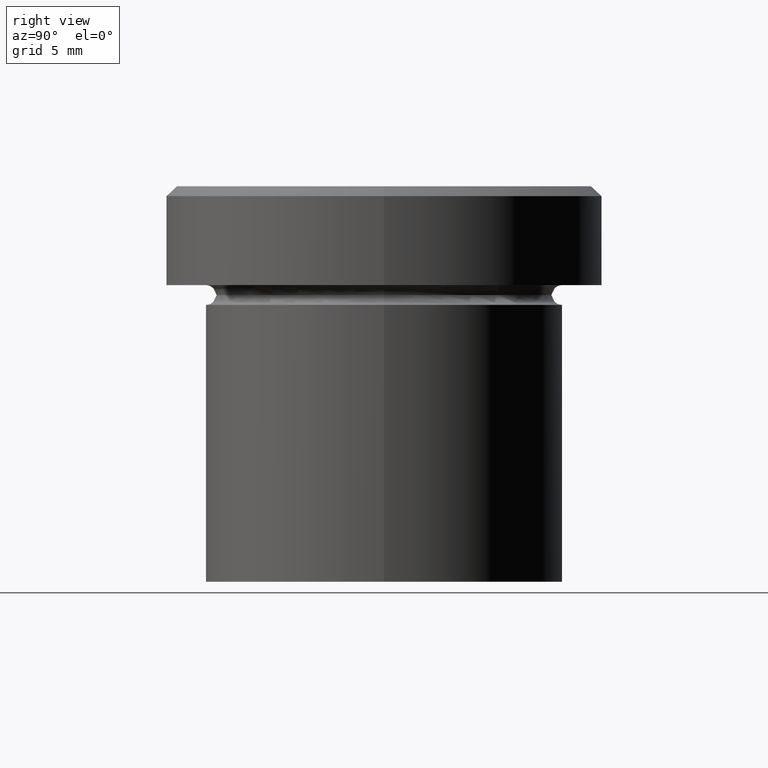
[diagram: clean part render]
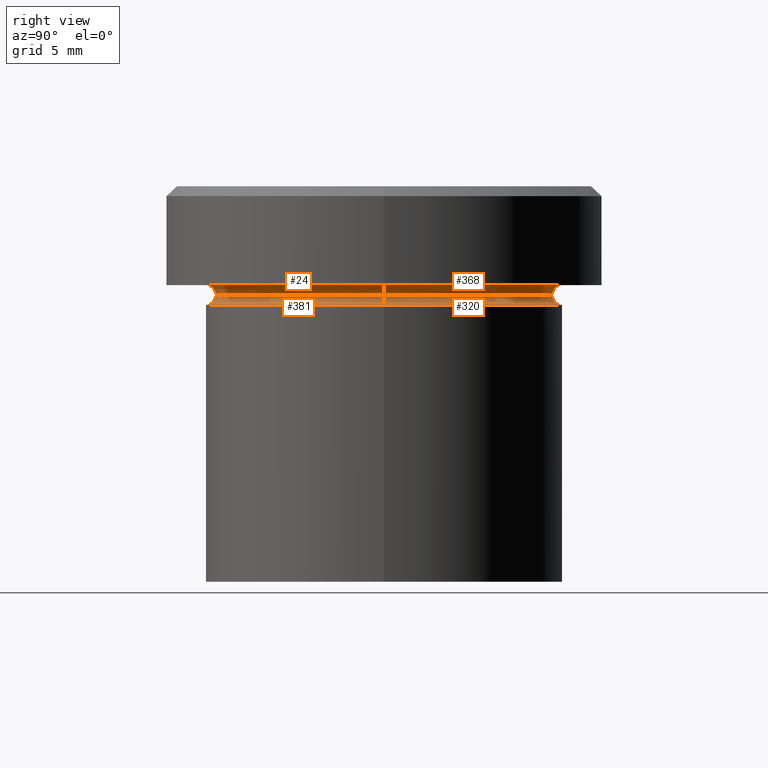
[diagram: same view with one multi-face feature highlighted, each face labeled with its STEP entity id]
A machine part, right view. The highlighted faces form ONE feature: a constant-radius fillet chain: 4 tangent blend faces with common blend radius 0.5 mm. The faces share edges in the B-rep.
Their STEP definitions:
[1] entity #24 (Torus):
#12 = DIRECTION ( 'NONE',  ( -1.000000000000000000, 0.000000000000000000, 0.000000000000000000 ) ) ;
#24 = ADVANCED_FACE ( 'NONE', ( #163 ), #360, .F. ) ;
#26 = CARTESIAN_POINT ( 'NONE',  ( 9.000000000000000000, 1.102182119232617714E-15, -5.500000000000000000 ) ) ;
#29 = DIRECTION ( 'NONE',  ( -0.000000000000000000, -0.000000000000000000, 1.000000000000000000 ) ) ;
#33 = CARTESIAN_POINT ( 'NONE',  ( 0.000000000000000000, 0.000000000000000000, -5.500000000000000000 ) ) ;
#45 = CARTESIAN_POINT ( 'NONE',  ( 0.000000000000000000, 0.000000000000000000, -5.000000000000000000 ) ) ;
#56 = ORIENTED_EDGE ( 'NONE', *, *, #72, .F. ) ;
#60 = AXIS2_PLACEMENT_3D ( 'NONE', #33, #29, #156 ) ;
#66 = AXIS2_PLACEMENT_3D ( 'NONE', #369, #293, #144 ) ;
#69 = CARTESIAN_POINT ( 'NONE',  ( 0.000000000000000000, 0.000000000000000000, -5.500000000000000000 ) ) ;
#72 = EDGE_CURVE ( 'NONE', #274, #240, #394, .T. ) ;
#77 = CARTESIAN_POINT ( 'NONE',  ( -8.499999999999998224, 1.071565949253933927E-15, -5.500000000000000000 ) ) ;
#97 = EDGE_CURVE ( 'NONE', #311, #240, #401, .T. ) ;
#98 = DIRECTION ( 'NONE',  ( -0.000000000000000000, -0.000000000000000000, 1.000000000000000000 ) ) ;
#129 = ORIENTED_EDGE ( 'NONE', *, *, #97, .T. ) ;
#136 = EDGE_CURVE ( 'NONE', #295, #311, #264, .T. ) ;
#144 = DIRECTION ( 'NONE',  ( 0.000000000000000000, 0.000000000000000000, -1.000000000000000000 ) ) ;
#147 = DIRECTION ( 'NONE',  ( -1.000000000000000000, -1.224646799147353454E-16, 0.000000000000000000 ) ) ;
#156 = DIRECTION ( 'NONE',  ( 1.000000000000000000, 0.000000000000000000, 0.000000000000000000 ) ) ;
#163 = FACE_OUTER_BOUND ( 'NONE', #409, .T. ) ;
#165 = DIRECTION ( 'NONE',  ( 0.000000000000000000, 0.000000000000000000, -1.000000000000000000 ) ) ;
#169 = CARTESIAN_POINT ( 'NONE',  ( 8.499999999999998224, 0.000000000000000000, -5.500000000000000000 ) ) ;
#174 = DIRECTION ( 'NONE',  ( -1.224646799147353207E-16, 1.000000000000000000, 0.000000000000000000 ) ) ;
#187 = AXIS2_PLACEMENT_3D ( 'NONE', #45, #98, #12 ) ;
#215 = CARTESIAN_POINT ( 'NONE',  ( 9.000000000000000000, 1.102182119232617714E-15, -4.999999999999999112 ) ) ;
#224 = ORIENTED_EDGE ( 'NONE', *, *, #333, .F. ) ;
#235 = CIRCLE ( 'NONE', #66, 0.5000000000000004441 ) ;
#240 = VERTEX_POINT ( 'NONE', #215 ) ;
#251 = CARTESIAN_POINT ( 'NONE',  ( -9.000000000000000000, 0.000000000000000000, -4.999999999999999112 ) ) ;
#264 = CIRCLE ( 'NONE', #60, 8.499999999999998224 ) ;
#274 = VERTEX_POINT ( 'NONE', #251 ) ;
#293 = DIRECTION ( 'NONE',  ( -0.000000000000000000, -1.000000000000000000, -0.000000000000000000 ) ) ;
#295 = VERTEX_POINT ( 'NONE', #77 ) ;
#300 = AXIS2_PLACEMENT_3D ( 'NONE', #26, #174, #147 ) ;
#308 = ORIENTED_EDGE ( 'NONE', *, *, #136, .T. ) ;
#311 = VERTEX_POINT ( 'NONE', #169 ) ;
#333 = EDGE_CURVE ( 'NONE', #295, #274, #235, .T. ) ;
#347 = AXIS2_PLACEMENT_3D ( 'NONE', #69, #165, #391 ) ;
#360 = TOROIDAL_SURFACE ( 'NONE', #347, 9.000000000000000000, 0.5000000000000000000 ) ;
#369 = CARTESIAN_POINT ( 'NONE',  ( -9.000000000000000000, 0.000000000000000000, -5.500000000000000000 ) ) ;
#391 = DIRECTION ( 'NONE',  ( -1.000000000000000000, 0.000000000000000000, 0.000000000000000000 ) ) ;
#394 = CIRCLE ( 'NONE', #187, 9.000000000000000000 ) ;
#401 = CIRCLE ( 'NONE', #300, 0.5000000000000004441 ) ;
#409 = EDGE_LOOP ( 'NONE', ( #308, #129, #56, #224 ) ) ;
[2] entity #368 (Torus):
#6 = ORIENTED_EDGE ( 'NONE', *, *, #333, .T. ) ;
#14 = DIRECTION ( 'NONE',  ( -1.000000000000000000, 0.000000000000000000, 0.000000000000000000 ) ) ;
#18 = EDGE_CURVE ( 'NONE', #240, #274, #226, .T. ) ;
#26 = CARTESIAN_POINT ( 'NONE',  ( 9.000000000000000000, 1.102182119232617714E-15, -5.500000000000000000 ) ) ;
#31 = ORIENTED_EDGE ( 'NONE', *, *, #91, .T. ) ;
#47 = CARTESIAN_POINT ( 'NONE',  ( 0.000000000000000000, 0.000000000000000000, -5.000000000000000000 ) ) ;
#51 = ORIENTED_EDGE ( 'NONE', *, *, #97, .F. ) ;
#66 = AXIS2_PLACEMENT_3D ( 'NONE', #369, #293, #144 ) ;
#77 = CARTESIAN_POINT ( 'NONE',  ( -8.499999999999998224, 1.071565949253933927E-15, -5.500000000000000000 ) ) ;
#81 = CARTESIAN_POINT ( 'NONE',  ( 0.000000000000000000, 0.000000000000000000, -5.500000000000000000 ) ) ;
#91 = EDGE_CURVE ( 'NONE', #311, #295, #291, .T. ) ;
#95 = AXIS2_PLACEMENT_3D ( 'NONE', #81, #367, #330 ) ;
#97 = EDGE_CURVE ( 'NONE', #311, #240, #401, .T. ) ;
#106 = ORIENTED_EDGE ( 'NONE', *, *, #18, .F. ) ;
#133 = AXIS2_PLACEMENT_3D ( 'NONE', #47, #323, #14 ) ;
#137 = FACE_OUTER_BOUND ( 'NONE', #230, .T. ) ;
#144 = DIRECTION ( 'NONE',  ( 0.000000000000000000, 0.000000000000000000, -1.000000000000000000 ) ) ;
#147 = DIRECTION ( 'NONE',  ( -1.000000000000000000, -1.224646799147353454E-16, 0.000000000000000000 ) ) ;
#169 = CARTESIAN_POINT ( 'NONE',  ( 8.499999999999998224, 0.000000000000000000, -5.500000000000000000 ) ) ;
#174 = DIRECTION ( 'NONE',  ( -1.224646799147353207E-16, 1.000000000000000000, 0.000000000000000000 ) ) ;
#175 = AXIS2_PLACEMENT_3D ( 'NONE', #331, #370, #198 ) ;
#198 = DIRECTION ( 'NONE',  ( 1.000000000000000000, 0.000000000000000000, 0.000000000000000000 ) ) ;
#215 = CARTESIAN_POINT ( 'NONE',  ( 9.000000000000000000, 1.102182119232617714E-15, -4.999999999999999112 ) ) ;
#226 = CIRCLE ( 'NONE', #133, 9.000000000000000000 ) ;
#230 = EDGE_LOOP ( 'NONE', ( #51, #31, #6, #106 ) ) ;
#235 = CIRCLE ( 'NONE', #66, 0.5000000000000004441 ) ;
#240 = VERTEX_POINT ( 'NONE', #215 ) ;
#251 = CARTESIAN_POINT ( 'NONE',  ( -9.000000000000000000, 0.000000000000000000, -4.999999999999999112 ) ) ;
#273 = TOROIDAL_SURFACE ( 'NONE', #95, 9.000000000000000000, 0.5000000000000000000 ) ;
#274 = VERTEX_POINT ( 'NONE', #251 ) ;
#291 = CIRCLE ( 'NONE', #175, 8.499999999999998224 ) ;
#293 = DIRECTION ( 'NONE',  ( -0.000000000000000000, -1.000000000000000000, -0.000000000000000000 ) ) ;
#295 = VERTEX_POINT ( 'NONE', #77 ) ;
#300 = AXIS2_PLACEMENT_3D ( 'NONE', #26, #174, #147 ) ;
#311 = VERTEX_POINT ( 'NONE', #169 ) ;
#323 = DIRECTION ( 'NONE',  ( -0.000000000000000000, -0.000000000000000000, 1.000000000000000000 ) ) ;
#330 = DIRECTION ( 'NONE',  ( -1.000000000000000000, 0.000000000000000000, 0.000000000000000000 ) ) ;
#331 = CARTESIAN_POINT ( 'NONE',  ( 0.000000000000000000, 0.000000000000000000, -5.500000000000000000 ) ) ;
#333 = EDGE_CURVE ( 'NONE', #295, #274, #235, .T. ) ;
#367 = DIRECTION ( 'NONE',  ( 0.000000000000000000, 0.000000000000000000, -1.000000000000000000 ) ) ;
#368 = ADVANCED_FACE ( 'NONE', ( #137 ), #273, .F. ) ;
#369 = CARTESIAN_POINT ( 'NONE',  ( -9.000000000000000000, 0.000000000000000000, -5.500000000000000000 ) ) ;
#370 = DIRECTION ( 'NONE',  ( -0.000000000000000000, -0.000000000000000000, 1.000000000000000000 ) ) ;
#401 = CIRCLE ( 'NONE', #300, 0.5000000000000004441 ) ;
[3] entity #320 (Torus):
#1 = ORIENTED_EDGE ( 'NONE', *, *, #91, .F. ) ;
#16 = AXIS2_PLACEMENT_3D ( 'NONE', #228, #52, #140 ) ;
#34 = ORIENTED_EDGE ( 'NONE', *, *, #171, .T. ) ;
#35 = EDGE_CURVE ( 'NONE', #311, #155, #180, .T. ) ;
#43 = AXIS2_PLACEMENT_3D ( 'NONE', #280, #285, #287 ) ;
#52 = DIRECTION ( 'NONE',  ( -0.000000000000000000, -0.000000000000000000, 1.000000000000000000 ) ) ;
#63 = DIRECTION ( 'NONE',  ( 1.000000000000000000, 0.000000000000000000, 0.000000000000000000 ) ) ;
#64 = ORIENTED_EDGE ( 'NONE', *, *, #35, .T. ) ;
#77 = CARTESIAN_POINT ( 'NONE',  ( -8.499999999999998224, 1.071565949253933927E-15, -5.500000000000000000 ) ) ;
#91 = EDGE_CURVE ( 'NONE', #311, #295, #291, .T. ) ;
#126 = ORIENTED_EDGE ( 'NONE', *, *, #359, .F. ) ;
#140 = DIRECTION ( 'NONE',  ( 1.000000000000000000, 0.000000000000000000, 0.000000000000000000 ) ) ;
#141 = DIRECTION ( 'NONE',  ( -1.000000000000000000, 1.224646799147353454E-16, 0.000000000000000000 ) ) ;
#152 = CARTESIAN_POINT ( 'NONE',  ( 0.000000000000000000, 0.000000000000000000, -6.000000000000000000 ) ) ;
#155 = VERTEX_POINT ( 'NONE', #345 ) ;
#169 = CARTESIAN_POINT ( 'NONE',  ( 8.499999999999998224, 0.000000000000000000, -5.500000000000000000 ) ) ;
#171 = EDGE_CURVE ( 'NONE', #155, #386, #243, .T. ) ;
#175 = AXIS2_PLACEMENT_3D ( 'NONE', #331, #370, #198 ) ;
#180 = CIRCLE ( 'NONE', #43, 0.5000000000000004441 ) ;
#182 = EDGE_LOOP ( 'NONE', ( #126, #1, #64, #34 ) ) ;
#195 = AXIS2_PLACEMENT_3D ( 'NONE', #403, #197, #141 ) ;
#197 = DIRECTION ( 'NONE',  ( 1.224646799147353207E-16, 1.000000000000000000, 0.000000000000000000 ) ) ;
#198 = DIRECTION ( 'NONE',  ( 1.000000000000000000, 0.000000000000000000, 0.000000000000000000 ) ) ;
#200 = FACE_OUTER_BOUND ( 'NONE', #182, .T. ) ;
#214 = AXIS2_PLACEMENT_3D ( 'NONE', #152, #351, #63 ) ;
#228 = CARTESIAN_POINT ( 'NONE',  ( 0.000000000000000000, 0.000000000000000000, -5.500000000000000000 ) ) ;
#232 = CARTESIAN_POINT ( 'NONE',  ( -9.000000000000000000, 1.102182119232617714E-15, -6.000000000000000000 ) ) ;
#243 = CIRCLE ( 'NONE', #214, 9.000000000000000000 ) ;
#280 = CARTESIAN_POINT ( 'NONE',  ( 9.000000000000000000, 0.000000000000000000, -5.500000000000000000 ) ) ;
#285 = DIRECTION ( 'NONE',  ( 0.000000000000000000, -1.000000000000000000, 0.000000000000000000 ) ) ;
#287 = DIRECTION ( 'NONE',  ( 0.000000000000000000, 0.000000000000000000, -1.000000000000000000 ) ) ;
#291 = CIRCLE ( 'NONE', #175, 8.499999999999998224 ) ;
#295 = VERTEX_POINT ( 'NONE', #77 ) ;
#311 = VERTEX_POINT ( 'NONE', #169 ) ;
#320 = ADVANCED_FACE ( 'NONE', ( #200 ), #327, .F. ) ;
#327 = TOROIDAL_SURFACE ( 'NONE', #16, 9.000000000000000000, 0.5000000000000000000 ) ;
#331 = CARTESIAN_POINT ( 'NONE',  ( 0.000000000000000000, 0.000000000000000000, -5.500000000000000000 ) ) ;
#345 = CARTESIAN_POINT ( 'NONE',  ( 9.000000000000000000, 0.000000000000000000, -6.000000000000000000 ) ) ;
#351 = DIRECTION ( 'NONE',  ( -0.000000000000000000, -0.000000000000000000, 1.000000000000000000 ) ) ;
#359 = EDGE_CURVE ( 'NONE', #295, #386, #408, .T. ) ;
#370 = DIRECTION ( 'NONE',  ( -0.000000000000000000, -0.000000000000000000, 1.000000000000000000 ) ) ;
#386 = VERTEX_POINT ( 'NONE', #232 ) ;
#403 = CARTESIAN_POINT ( 'NONE',  ( -9.000000000000000000, 1.102182119232617714E-15, -5.500000000000000000 ) ) ;
#408 = CIRCLE ( 'NONE', #195, 0.5000000000000004441 ) ;
[4] entity #381 (Torus):
#23 = DIRECTION ( 'NONE',  ( -0.000000000000000000, -0.000000000000000000, 1.000000000000000000 ) ) ;
#25 = AXIS2_PLACEMENT_3D ( 'NONE', #372, #337, #254 ) ;
#29 = DIRECTION ( 'NONE',  ( -0.000000000000000000, -0.000000000000000000, 1.000000000000000000 ) ) ;
#32 = CIRCLE ( 'NONE', #76, 9.000000000000000000 ) ;
#33 = CARTESIAN_POINT ( 'NONE',  ( 0.000000000000000000, 0.000000000000000000, -5.500000000000000000 ) ) ;
#35 = EDGE_CURVE ( 'NONE', #311, #155, #180, .T. ) ;
#43 = AXIS2_PLACEMENT_3D ( 'NONE', #280, #285, #287 ) ;
#60 = AXIS2_PLACEMENT_3D ( 'NONE', #33, #29, #156 ) ;
#76 = AXIS2_PLACEMENT_3D ( 'NONE', #299, #23, #146 ) ;
#77 = CARTESIAN_POINT ( 'NONE',  ( -8.499999999999998224, 1.071565949253933927E-15, -5.500000000000000000 ) ) ;
#87 = ORIENTED_EDGE ( 'NONE', *, *, #374, .T. ) ;
#94 = ORIENTED_EDGE ( 'NONE', *, *, #136, .F. ) ;
#110 = FACE_OUTER_BOUND ( 'NONE', #178, .T. ) ;
#136 = EDGE_CURVE ( 'NONE', #295, #311, #264, .T. ) ;
#141 = DIRECTION ( 'NONE',  ( -1.000000000000000000, 1.224646799147353454E-16, 0.000000000000000000 ) ) ;
#146 = DIRECTION ( 'NONE',  ( 1.000000000000000000, 0.000000000000000000, 0.000000000000000000 ) ) ;
#153 = ORIENTED_EDGE ( 'NONE', *, *, #359, .T. ) ;
#155 = VERTEX_POINT ( 'NONE', #345 ) ;
#156 = DIRECTION ( 'NONE',  ( 1.000000000000000000, 0.000000000000000000, 0.000000000000000000 ) ) ;
#169 = CARTESIAN_POINT ( 'NONE',  ( 8.499999999999998224, 0.000000000000000000, -5.500000000000000000 ) ) ;
#178 = EDGE_LOOP ( 'NONE', ( #94, #153, #87, #236 ) ) ;
#180 = CIRCLE ( 'NONE', #43, 0.5000000000000004441 ) ;
#195 = AXIS2_PLACEMENT_3D ( 'NONE', #403, #197, #141 ) ;
#197 = DIRECTION ( 'NONE',  ( 1.224646799147353207E-16, 1.000000000000000000, 0.000000000000000000 ) ) ;
#232 = CARTESIAN_POINT ( 'NONE',  ( -9.000000000000000000, 1.102182119232617714E-15, -6.000000000000000000 ) ) ;
#236 = ORIENTED_EDGE ( 'NONE', *, *, #35, .F. ) ;
#254 = DIRECTION ( 'NONE',  ( 1.000000000000000000, 0.000000000000000000, 0.000000000000000000 ) ) ;
#264 = CIRCLE ( 'NONE', #60, 8.499999999999998224 ) ;
#280 = CARTESIAN_POINT ( 'NONE',  ( 9.000000000000000000, 0.000000000000000000, -5.500000000000000000 ) ) ;
#285 = DIRECTION ( 'NONE',  ( 0.000000000000000000, -1.000000000000000000, 0.000000000000000000 ) ) ;
#287 = DIRECTION ( 'NONE',  ( 0.000000000000000000, 0.000000000000000000, -1.000000000000000000 ) ) ;
#295 = VERTEX_POINT ( 'NONE', #77 ) ;
#299 = CARTESIAN_POINT ( 'NONE',  ( 0.000000000000000000, 0.000000000000000000, -6.000000000000000000 ) ) ;
#311 = VERTEX_POINT ( 'NONE', #169 ) ;
#322 = TOROIDAL_SURFACE ( 'NONE', #25, 9.000000000000000000, 0.5000000000000000000 ) ;
#337 = DIRECTION ( 'NONE',  ( -0.000000000000000000, -0.000000000000000000, 1.000000000000000000 ) ) ;
#345 = CARTESIAN_POINT ( 'NONE',  ( 9.000000000000000000, 0.000000000000000000, -6.000000000000000000 ) ) ;
#359 = EDGE_CURVE ( 'NONE', #295, #386, #408, .T. ) ;
#372 = CARTESIAN_POINT ( 'NONE',  ( 0.000000000000000000, 0.000000000000000000, -5.500000000000000000 ) ) ;
#374 = EDGE_CURVE ( 'NONE', #386, #155, #32, .T. ) ;
#381 = ADVANCED_FACE ( 'NONE', ( #110 ), #322, .F. ) ;
#386 = VERTEX_POINT ( 'NONE', #232 ) ;
#403 = CARTESIAN_POINT ( 'NONE',  ( -9.000000000000000000, 1.102182119232617714E-15, -5.500000000000000000 ) ) ;
#408 = CIRCLE ( 'NONE', #195, 0.5000000000000004441 ) ;